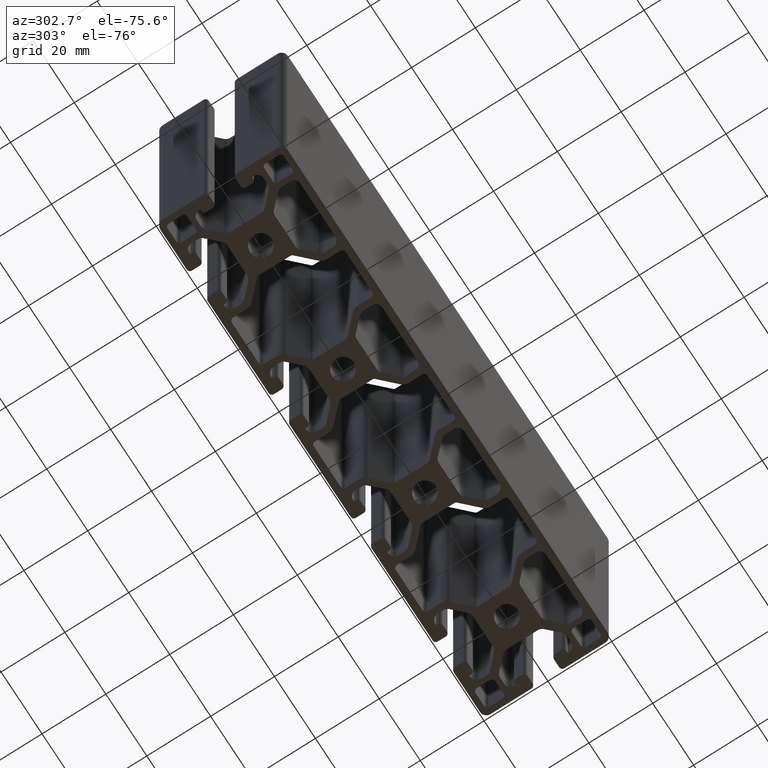
[diagram: clean part render]
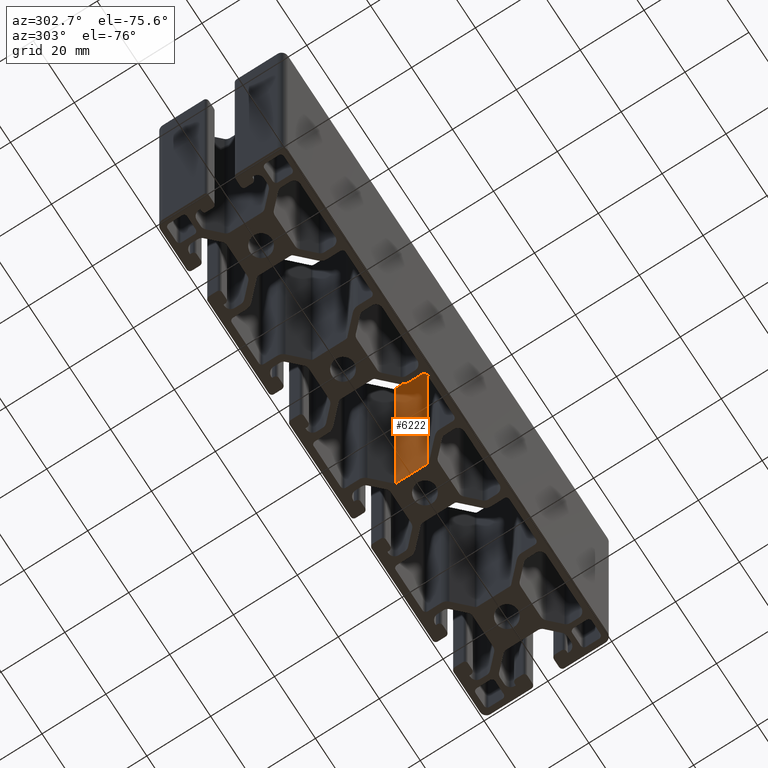
[diagram: same view with one face highlighted and labeled with its STEP entity id]
A machine part, auxiliary view. The second image highlights one B-rep face of the part: STEP entity #6222.
In plain terms, the highlighted planar face has unit normal (1, 0, 0).
Its self-contained STEP definition (entity closure, byte-faithful):
#81=PLANE('',#6612);
#280=FACE_OUTER_BOUND('',#602,.T.);
#602=EDGE_LOOP('',(#4349,#4350,#4351,#4352));
#1022=LINE('',#9421,#1666);
#1023=LINE('',#9425,#1667);
#1024=LINE('',#9427,#1668);
#1025=LINE('',#9428,#1669);
#1666=VECTOR('',#7506,100.);
#1667=VECTOR('',#7511,10.0155728752538);
#1668=VECTOR('',#7512,100.);
#1669=VECTOR('',#7513,10.0155728752538);
#2623=VERTEX_POINT('',#9418);
#2624=VERTEX_POINT('',#9420);
#2625=VERTEX_POINT('',#9424);
#2626=VERTEX_POINT('',#9426);
#3327=EDGE_CURVE('',#2623,#2624,#1022,.T.);
#3329=EDGE_CURVE('',#2625,#2623,#1023,.T.);
#3330=EDGE_CURVE('',#2625,#2626,#1024,.T.);
#3331=EDGE_CURVE('',#2624,#2626,#1025,.T.);
#4349=ORIENTED_EDGE('',*,*,#3329,.F.);
#4350=ORIENTED_EDGE('',*,*,#3330,.T.);
#4351=ORIENTED_EDGE('',*,*,#3331,.F.);
#4352=ORIENTED_EDGE('',*,*,#3327,.F.);
#6222=ADVANCED_FACE('',(#280),#81,.F.);
#6612=AXIS2_PLACEMENT_3D('',#9423,#7509,#7510);
#7506=DIRECTION('',(0.,0.,1.));
#7509=DIRECTION('center_axis',(1.,0.,0.));
#7510=DIRECTION('ref_axis',(0.,1.,0.));
#7511=DIRECTION('',(0.,1.,0.));
#7512=DIRECTION('',(0.,0.,1.));
#7513=DIRECTION('',(0.,-1.,0.));
#9418=CARTESIAN_POINT('',(13.5,5.00778643762691,0.));
#9420=CARTESIAN_POINT('',(13.5,5.00778643762691,100.));
#9421=CARTESIAN_POINT('',(13.5,5.00778643762691,0.));
#9423=CARTESIAN_POINT('Origin',(13.5,-5.0077864376269,0.));
#9424=CARTESIAN_POINT('',(13.5,-5.0077864376269,0.));
#9425=CARTESIAN_POINT('',(13.5,-1.10485791481119,0.));
#9426=CARTESIAN_POINT('',(13.5,-5.0077864376269,100.));
#9427=CARTESIAN_POINT('',(13.5,-5.0077864376269,0.));
#9428=CARTESIAN_POINT('',(13.5,-1.10485791481119,100.));